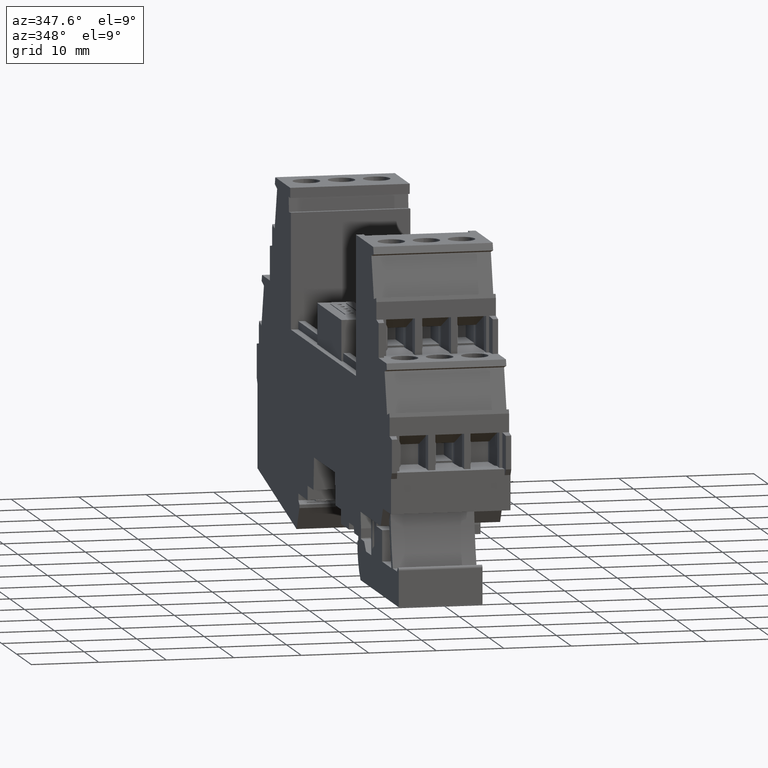
[diagram: clean part render]
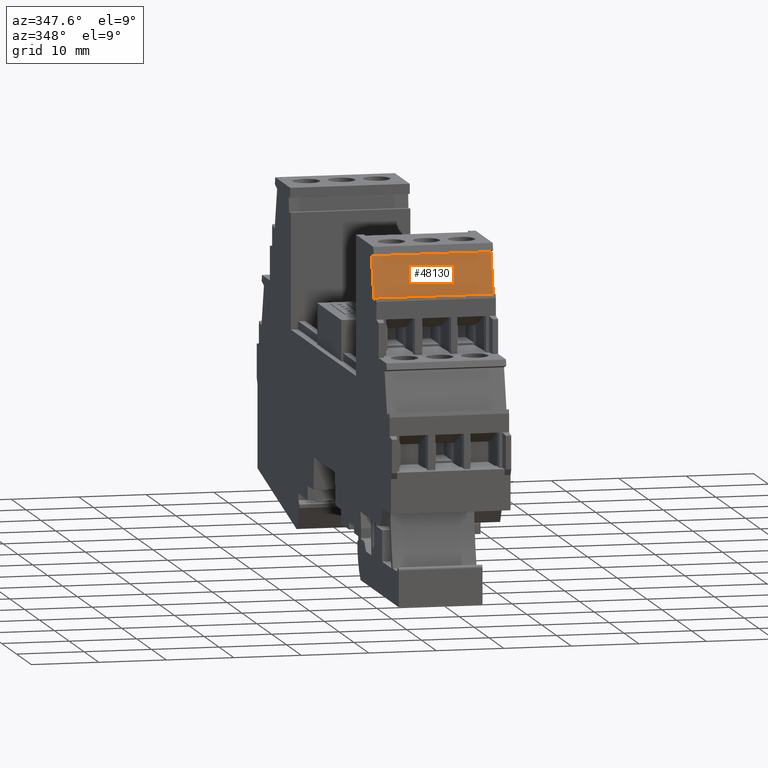
[diagram: same view with one face highlighted and labeled with its STEP entity id]
A machine part, auxiliary view. The second image highlights one B-rep face of the part: STEP entity #48130.
In plain terms, the highlighted planar face has unit normal (-0, -0.9646, 0.2639).
Its self-contained STEP definition (entity closure, byte-faithful):
#920=CARTESIAN_POINT('',(107.402788328871,47.4797328046665,
-1.11334144429721));
#930=VERTEX_POINT('',#920);
#960=CARTESIAN_POINT('',(100.197717222867,21.1424286096103,
-1.11334144313539));
#970=DIRECTION('',(-0.263873049965295,-0.964557418457819,
4.25495846299392E-11));
#980=VECTOR('',#970,1.);
#990=LINE('',#960,#980);
#1000=CARTESIAN_POINT('',(105.733791287841,41.3789071329206,
-1.11334144402808));
#1010=VERTEX_POINT('',#1000);
#1020=EDGE_CURVE('',#930,#1010,#990,.T.);
#13210=CARTESIAN_POINT('',(105.733791287839,41.3789071337014,
16.5866585524097));
#13220=VERTEX_POINT('',#13210);
#13250=CARTESIAN_POINT('',(100.197717222863,21.1424286103838,
16.5866585533009));
#13260=DIRECTION('',(0.263873049965258,0.96455741845783,
-4.24800014018696E-11));
#13270=VECTOR('',#13260,1.);
#13280=LINE('',#13250,#13270);
#13290=CARTESIAN_POINT('',(107.402788328869,47.4797328054474,
16.586658552141));
#13300=VERTEX_POINT('',#13290);
#13310=EDGE_CURVE('',#13220,#13300,#13280,.T.);
#47780=CARTESIAN_POINT('',(105.733791287839,41.3789071337014,
16.5866585579162));
#47790=DIRECTION('',(-1.31820480445849E-13,4.41130550527766E-11,1.));
#47800=VECTOR('',#47790,1.);
#47810=LINE('',#47780,#47800);
#47820=EDGE_CURVE('',#1010,#13220,#47810,.T.);
#47970=CARTESIAN_POINT('',(105.865727812824,41.8611858421498,
-1.11334144458997));
#47980=DIRECTION('',(-0.96455741845783,0.263873049965258,
-1.17673948023802E-11));
#47990=DIRECTION('',(-0.263873049965258,-0.96455741845783,
4.25147906297712E-11));
#48000=AXIS2_PLACEMENT_3D('',#47970,#47980,#47990);
#48010=PLANE('',#48000);
#48020=CARTESIAN_POINT('',(107.402788328869,47.4797328054471,
16.5866585575764));
#48030=DIRECTION('',(-1.31820480445849E-13,4.41130550527766E-11,1.));
#48040=VECTOR('',#48030,1.);
#48050=LINE('',#48020,#48040);
#48060=EDGE_CURVE('',#930,#13300,#48050,.T.);
#48070=ORIENTED_EDGE('',*,*,#48060,.F.);
#48080=ORIENTED_EDGE('',*,*,#13310,.T.);
#48090=ORIENTED_EDGE('',*,*,#47820,.T.);
#48100=ORIENTED_EDGE('',*,*,#1020,.T.);
#48110=EDGE_LOOP('',(#48100,#48090,#48080,#48070));
#48120=FACE_OUTER_BOUND('',#48110,.T.);
#48130=ADVANCED_FACE('',(#48120),#48010,.T.);